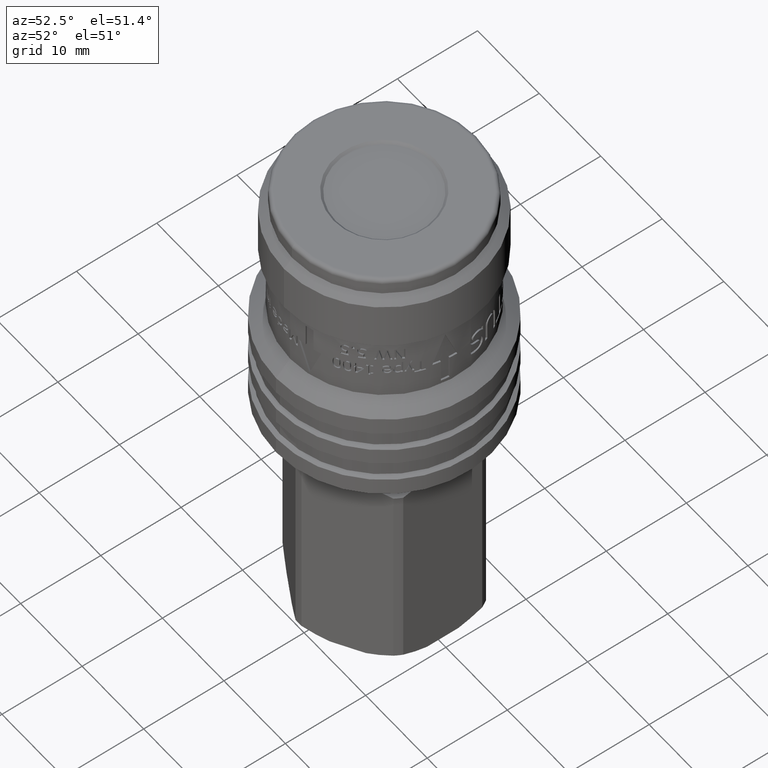
[diagram: clean part render]
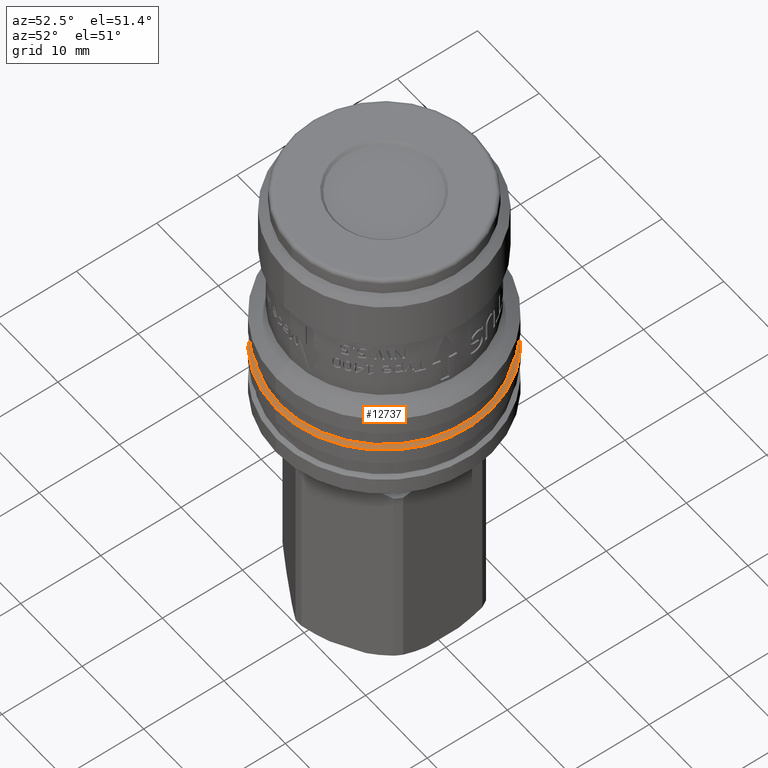
[diagram: same view with one face highlighted and labeled with its STEP entity id]
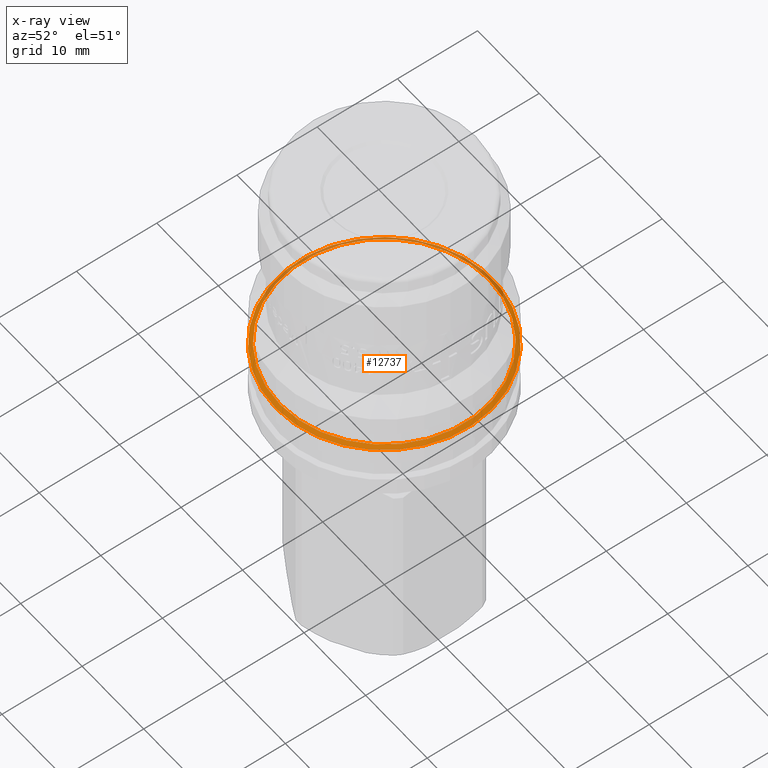
[diagram: x-ray of the same camera — body ghosted, the highlighted face saturated]
A machine part, auxiliary view. The second image highlights one B-rep face of the part: STEP entity #12737.
The next image is the same camera in x-ray: the body ghosted, the highlighted face saturated — about 23% of this face is hidden behind the body in this view.
In plain terms, the highlighted conical surface has half-angle 60 deg.
Its self-contained STEP definition (entity closure, byte-faithful):
#1158=FACE_BOUND($,#4234,.T.);
#1182=CONICAL_SURFACE($,#13359,13.25,59.9999999999997);
#3486=FACE_OUTER_BOUND($,#4233,.T.);
#4233=EDGE_LOOP($,(#11082));
#4234=EDGE_LOOP($,(#11083));
#4466=CIRCLE($,#13358,13.5);
#4467=CIRCLE($,#13360,13.);
#5677=VERTEX_POINT($,#88756);
#5678=VERTEX_POINT($,#88759);
#7482=EDGE_CURVE($,#5677,#5677,#4466,.T.);
#7483=EDGE_CURVE($,#5678,#5678,#4467,.T.);
#11082=ORIENTED_EDGE($,*,*,#7482,.T.);
#11083=ORIENTED_EDGE($,*,*,#7483,.F.);
#12737=ADVANCED_FACE($,(#3486,#1158),#1182,.T.);
#13358=AXIS2_PLACEMENT_3D($,#88757,#15368,#15369);
#13359=AXIS2_PLACEMENT_3D($,#88758,#15370,#15371);
#13360=AXIS2_PLACEMENT_3D($,#88760,#15372,#15373);
#15368=DIRECTION('center_axis',(0.,0.,1.));
#15369=DIRECTION('ref_axis',(-1.,0.,0.));
#15370=DIRECTION('center_axis',(0.,0.,-1.));
#15371=DIRECTION('ref_axis',(0.,-1.,0.));
#15372=DIRECTION('center_axis',(0.,0.,1.));
#15373=DIRECTION('ref_axis',(-1.,0.,0.));
#88756=CARTESIAN_POINT('',(0.,-13.5,-6.6386751345948));
#88757=CARTESIAN_POINT('Origin',(0.,0.,-6.6386751345948));
#88758=CARTESIAN_POINT('Origin',(0.,0.,-6.49433756729739));
#88759=CARTESIAN_POINT('',(0.,-13.,-6.34999999999998));
#88760=CARTESIAN_POINT('Origin',(0.,0.,-6.34999999999998));